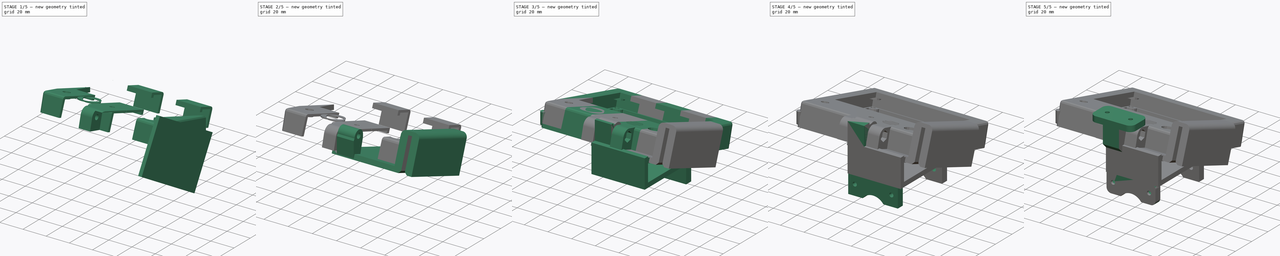
[diagram: build sequence overview — one tinted view per stage of 5, left to right]
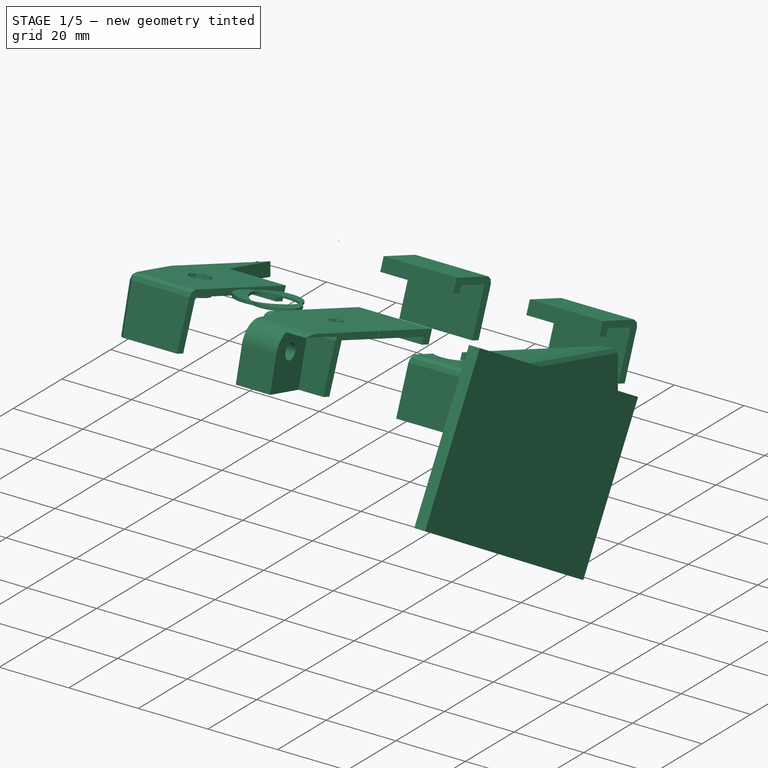
[diagram: stage 1 of 5 — iso view after this stage's code; geometry added in this stage tinted green]
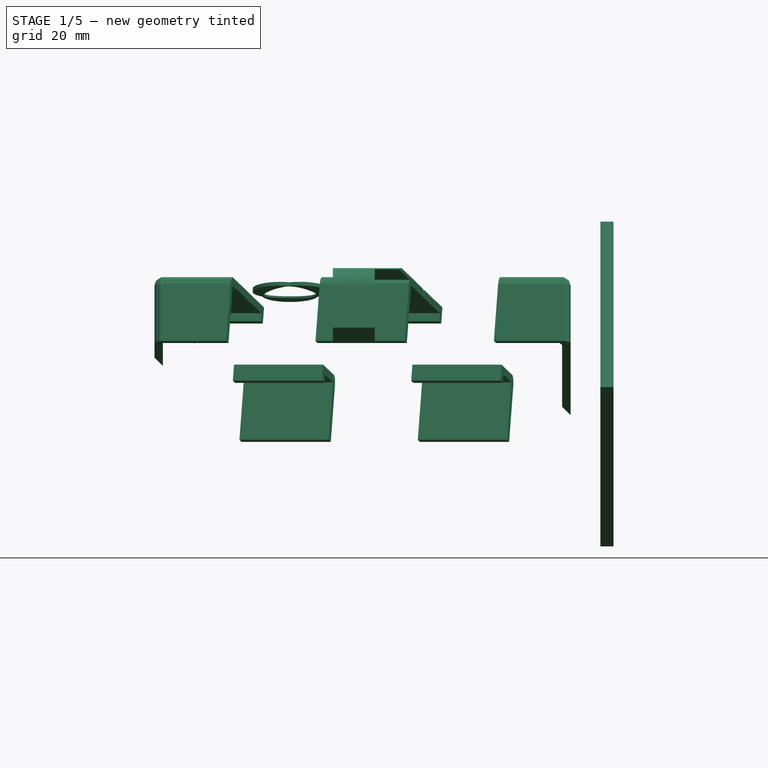
[diagram: stage 1 of 5 — front view after this stage's code; geometry added in this stage tinted green]
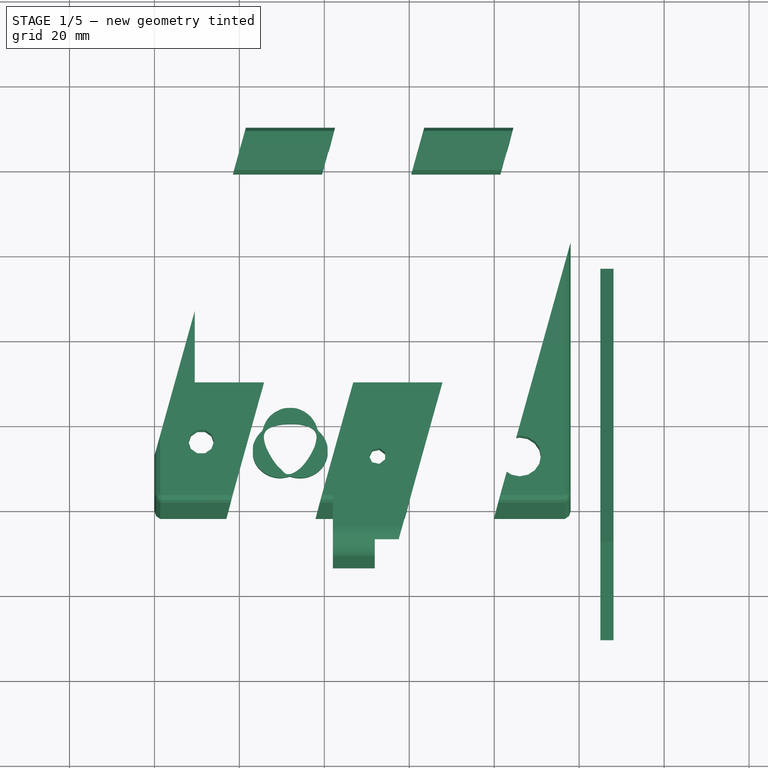
[diagram: stage 1 of 5 — top view after this stage's code; geometry added in this stage tinted green]
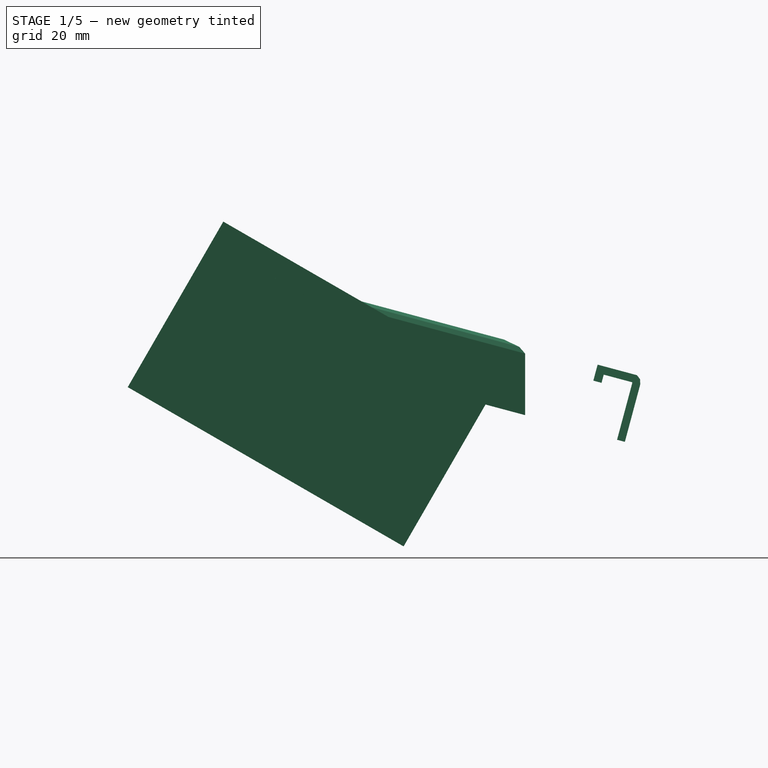
[diagram: stage 1 of 5 — right view after this stage's code; geometry added in this stage tinted green]
FCSTD DOCUMENT  (FreeCAD 0.16R5667 (Git))
Label: soporte-display
License: CC-BY 3.0
LicenseURL: http://creativecommons.org/licenses/by/3.0/
objects: Sketcher::SketchObject×23, PartDesign::Pocket×19, Part::FeaturePython×17, Part::Box×15, App::DocumentObjectGroup×13, Part::Feature×10, Part::MultiFuse×9, Part::Cut×7, PartDesign::Fillet×6, PartDesign::Chamfer×4, Part::MultiCommon×4, Part::Extrusion×3, Part::Cylinder×2, PartDesign::Pad×2, Part::Compound×1
note: 143 computed .brp shape members not serialized (recipe doc carries the construction recipe); baked Part::Feature solids carry a one-line shape summary decoded from their .brp

FEATURE [Part::Box] Box  label="Cube"
  Height = 15.9
  Length = 34
  Placement = pos=(42,-12,3) rot=(0,0,1;0rad)
  Width = 14
FEATURE [PartDesign::Fillet] Fillet
  Base = -> Box [Edge10]
  Placement = pos=(42,-12,3) rot=(0,0,1;0rad)
  Radius = 6
FEATURE [Sketcher::SketchObject] Sketch
  ExternalGeometry = -> [Fillet]
  Placement = pos=(42,-12,3) rot=(1,0,0;3.14159rad)
  Support = -> Fillet [Face4]
  sketch-geometry (6):
    g0: LineSegment StartX=9.875 StartY=0 StartZ=0 EndX=24.125 EndY=0 EndZ=0
    g1: LineSegment StartX=24.125 StartY=0 StartZ=0 EndX=24.125 EndY=-18.5079 EndZ=0
    g2: LineSegment StartX=24.125 StartY=-18.5079 StartZ=0 EndX=9.875 EndY=-18.5079 EndZ=0
    g3: LineSegment StartX=9.875 StartY=-18.5079 StartZ=0 EndX=9.875 EndY=0 EndZ=0
    g4: LineSegment [constr] StartX=0 StartY=0 StartZ=0 EndX=9.875 EndY=0 EndZ=0
    g5: LineSegment [constr] StartX=24.125 StartY=0 StartZ=0 EndX=34 EndY=0 EndZ=0
  constraints (15):
    c: Coincident(g0,g1)
    c: Coincident(g1,g2)
    c: Coincident(g2,g3)
    c: Coincident(g3,g0)
    c: Horizontal(g0)
    c: Horizontal(g2)
    c: Vertical(g1)
    c: Vertical(g3)
    c: PointOnObject(g0,g-5)
    c: Coincident(g4,g-1)
    c: Coincident(g4,g0)
    c: Coincident(g5,g0)
    c: Coincident(g5,g-5)
    c: Equal(g4,g5)
    c: Distance(g0,g0) = 14.25
FEATURE [PartDesign::Pocket] Pocket
  Length = 15
  Placement = pos=(42,-12,3) rot=(0,0,1;0rad)
  Sketch = -> Sketch
  Type = 0
FEATURE [Sketcher::SketchObject] Sketch001
  Placement = pos=(42,-12,3) rot=(0.57735,-0.57735,-0.57735;2.0944rad)
  Support = -> Pocket [Face1]
  sketch-geometry (1):
    g0: Circle CenterX=-6 CenterY=9.9 CenterZ=0 NormalX=0 NormalY=0 NormalZ=1 Radius=2.15
  constraints (1):
    c: Radius(g0) = 2.15
FEATURE [PartDesign::Pocket] Pocket001
  Length = 36
  Placement = pos=(42,-12,3) rot=(0,0,1;0rad)
  Sketch = -> Sketch001
  Type = 0
FEATURE [Sketcher::SketchObject] Sketch002
  Placement = pos=(42,-12,3) rot=(0.57735,-0.57735,-0.57735;2.0944rad)
  Support = -> Pocket001 [Face1]
  sketch-geometry (7):
    g0: LineSegment StartX=-2.3 StartY=12.0362 StartZ=0 EndX=-6 EndY=14.1724 EndZ=0
    g1: LineSegment StartX=-6 StartY=14.1724 StartZ=0 EndX=-9.7 EndY=12.0362 EndZ=0
    g2: LineSegment StartX=-9.7 StartY=12.0362 StartZ=0 EndX=-9.7 EndY=7.7638 EndZ=0
    g3: LineSegment StartX=-9.7 StartY=7.7638 StartZ=0 EndX=-6 EndY=5.62761 EndZ=0
    g4: LineSegment StartX=-6 StartY=5.62761 StartZ=0 EndX=-2.3 EndY=7.7638 EndZ=0
    g5: LineSegment StartX=-2.3 StartY=7.7638 StartZ=0 EndX=-2.3 EndY=12.0362 EndZ=0
    g6: Circle [constr] CenterX=-6 CenterY=9.9 CenterZ=0 NormalX=0 NormalY=0 NormalZ=1 Radius=4.27239
  constraints (15):
    c: Coincident(g0,g1)
    c: Coincident(g1,g2)
    c: Coincident(g2,g3)
    c: Coincident(g3,g4)
    c: Coincident(g4,g5)
    c: Coincident(g5,g0)
    c: Equal(g0, g1-g5) x5
    c: PointOnObject(g0,g6)
    c: PointOnObject(g1,g6)
    c: PointOnObject(g2,g6)
    c: PointOnObject(g3,g6)
    c: PointOnObject(g4,g6)
    c: PointOnObject(g5,g6)
    c: Distance(g4,g2) = 7.4
    c: Vertical(g5)
FEATURE [PartDesign::Pocket] Pocket002
  Length = 5.5
  Placement = pos=(42,-12,3) rot=(0,0,1;0rad)
  Sketch = -> Sketch002
  Type = 0
FEATURE [Sketcher::SketchObject] Sketch003
  Placement = pos=(76,-12,3) rot=(0.57735,0.57735,0.57735;2.0944rad)
  Support = -> Pocket002 [Face17]
  sketch-geometry (7):
    g0: LineSegment StartX=2.3 StartY=12.0362 StartZ=0 EndX=2.3 EndY=7.7638 EndZ=0
    g1: LineSegment StartX=2.3 StartY=7.7638 StartZ=0 EndX=6 EndY=5.62761 EndZ=0
    g2: LineSegment StartX=6 StartY=5.62761 StartZ=0 EndX=9.7 EndY=7.7638 EndZ=0
    g3: LineSegment StartX=9.7 StartY=7.7638 StartZ=0 EndX=9.7 EndY=12.0362 EndZ=0
    g4: LineSegment StartX=9.7 StartY=12.0362 StartZ=0 EndX=6 EndY=14.1724 EndZ=0
    g5: LineSegment StartX=6 StartY=14.1724 StartZ=0 EndX=2.3 EndY=12.0362 EndZ=0
    g6: Circle [constr] CenterX=6 CenterY=9.9 CenterZ=0 NormalX=0 NormalY=0 NormalZ=1 Radius=4.27239
  constraints (15):
    c: Coincident(g0,g1)
    c: Coincident(g1,g2)
    c: Coincident(g2,g3)
    c: Coincident(g3,g4)
    c: Coincident(g4,g5)
    c: Coincident(g5,g0)
    c: Equal(g0, g1-g5) x5
    c: PointOnObject(g0,g6)
    c: PointOnObject(g1,g6)
    c: PointOnObject(g2,g6)
    c: PointOnObject(g3,g6)
    c: PointOnObject(g4,g6)
    c: PointOnObject(g5,g6)
    c: Vertical(g0)
    c: Distance(g0,g3) = 7.4
FEATURE [PartDesign::Pocket] Pocket003  label="Frontal001"
  Length = 4
  Placement = pos=(42,-12,3) rot=(0,0,1;0rad)
  Sketch = -> Sketch003
  Type = 0
FEATURE [Part::MultiFuse] Fusion003
  Placement = pos=(0,-3.5,-1) rot=(-1,0,0;0.261799rad)
  Shapes = -> [Pocket003,Solid]
FEATURE [Part::Box] Box005008  label="Cubo"
  Height = 45
  Length = 3.1
  Placement = pos=(105,-31,-9) rot=(-1,0,0;0.523599rad)
  Width = 75
FEATURE [Part::Feature] Clone006001  label="Clone of Clone of Cut002"
  Placement = pos=(-80.5,140.5,-16) rot=(-1,0,0;0.226893rad)
  shape: bbox 17.66 x 17.4 x 6.784 mm, 37 faces (baked)
FEATURE [Part::Cut] Cut004  label="Frontal-branded"
  Base = -> Fusion003
  Tool = -> Clone006001
FEATURE [App::DocumentObjectGroup] Group  label="Frontal"
  Group = -> [Solid,Box,Fillet,Pocket,Pocket001,Pocket002,Pocket003,Cut004]
FEATURE [Sketcher::SketchObject] Sketch023
  Placement = pos=(0,4.40777,16.45) rot=(-1,0,0;0.261799rad)
  Support = -> Cut004 [Face51]
  sketch-geometry (22):
    g0: LineSegment [constr] StartX=-34.0548 StartY=125.691 StartZ=0 EndX=170.501 EndY=125.691 EndZ=0
    g1: LineSegment [constr] StartX=170.501 StartY=125.691 StartZ=0 EndX=170.501 EndY=-49.1688 EndZ=0
    g2: LineSegment [constr] StartX=-34.0548 StartY=-49.1688 StartZ=0 EndX=-34.0548 EndY=125.691 EndZ=0
    g3: LineSegment StartX=10.5477 StartY=125.691 StartZ=0 EndX=-40.8899 EndY=-66.277 EndZ=0
    g4: LineSegment StartX=-40.8899 StartY=-66.277 StartZ=0 EndX=-19.8899 EndY=-66.277 EndZ=0
    g5: LineSegment StartX=-19.8899 StartY=-66.277 StartZ=0 EndX=31.5477 EndY=125.691 EndZ=0
    g6: LineSegment StartX=31.5477 StartY=125.691 StartZ=0 EndX=10.5477 EndY=125.691 EndZ=0
    g7: LineSegment StartX=52.5477 StartY=125.691 StartZ=0 EndX=1.11006 EndY=-66.277 EndZ=0
    g8: LineSegment StartX=1.11006 StartY=-66.277 StartZ=0 EndX=22.1101 EndY=-66.277 EndZ=0
    g9: LineSegment StartX=22.1101 StartY=-66.277 StartZ=0 EndX=73.5477 EndY=125.691 EndZ=0
    g10: LineSegment StartX=73.5477 StartY=125.691 StartZ=0 EndX=52.5477 EndY=125.691 EndZ=0
    g11: LineSegment StartX=94.5477 StartY=125.691 StartZ=0 EndX=43.1101 EndY=-66.277 EndZ=0
    g12: LineSegment StartX=43.1101 StartY=-66.277 StartZ=0 EndX=64.1101 EndY=-66.277 EndZ=0
    g13: LineSegment StartX=64.1101 StartY=-66.277 StartZ=0 EndX=115.548 EndY=125.691 EndZ=0
    g14: LineSegment StartX=115.548 StartY=125.691 StartZ=0 EndX=94.5477 EndY=125.691 EndZ=0
    g15: LineSegment StartX=136.548 StartY=125.691 StartZ=0 EndX=85.1101 EndY=-66.277 EndZ=0
    g16: LineSegment StartX=85.1101 StartY=-66.277 StartZ=0 EndX=106.11 EndY=-66.277 EndZ=0
    g17: LineSegment StartX=106.11 StartY=-66.277 StartZ=0 EndX=157.548 EndY=125.691 EndZ=0
    g18: LineSegment StartX=157.548 StartY=125.691 StartZ=0 EndX=136.548 EndY=125.691 EndZ=0
    g19: LineSegment [constr] StartX=-19.8899 StartY=-66.277 StartZ=0 EndX=1.11006 EndY=-66.277 EndZ=0
    g20: LineSegment [constr] StartX=22.1101 StartY=-66.277 StartZ=0 EndX=43.1101 EndY=-66.277 EndZ=0
    g21: LineSegment [constr] StartX=64.1101 StartY=-66.277 StartZ=0 EndX=85.1101 EndY=-66.277 EndZ=0
  constraints (57):
    c: Coincident(g0,g1)
    c: Coincident(g2,g0)
    c: Horizontal(g0)
    c: Vertical(g1)
    c: Vertical(g2)
    c: PointOnObject(g3,g0)
    c: Coincident(g3,g4)
    c: Horizontal(g4)
    c: Coincident(g4,g5)
    c: PointOnObject(g5,g0)
    c: Coincident(g5,g6)
    c: Coincident(g6,g3)
    c: PointOnObject(g7,g0)
    c: Coincident(g7,g8)
    c: Horizontal(g8)
    c: Coincident(g8,g9)
    c: PointOnObject(g9,g0)
    c: Coincident(g9,g10)
    c: Coincident(g10,g7)
    c: PointOnObject(g11,g0)
    c: Coincident(g11,g12)
    c: Horizontal(g12)
    c: Coincident(g12,g13)
    c: PointOnObject(g13,g0)
    c: Coincident(g13,g14)
    c: Coincident(g14,g11)
    c: PointOnObject(g15,g0)
    c: Coincident(g15,g16)
    c: Horizontal(g16)
    c: Coincident(g16,g17)
    c: PointOnObject(g17,g0)
    c: Coincident(g17,g18)
    c: Coincident(g18,g15)
    c: Coincident(g19,g4)
    c: Coincident(g19,g7)
    c: Horizontal(g19)
    c: Coincident(g20,g8)
    c: Coincident(g20,g11)
    c: Coincident(g21,g12)
    c: Coincident(g21,g15)
    c: Horizontal(g21)
    c: Horizontal(g20)
    c: Parallel(g3,g5)
    c: Parallel(g5,g7)
    c: Parallel(g7,g9)
    c: Parallel(g9,g11)
    c: Parallel(g11,g13)
    c: Parallel(g13,g15)
    c: Parallel(g15,g17)
    c: Equal(g4,g19)
    c: Equal(g19,g8)
    c: Equal(g8,g20)
    c: Equal(g20,g12)
    c: Equal(g12,g21)
    c: Equal(g21,g16)
    c: Distance(g4) = 21
    c: Angle(g0,g17) = 1.309
FEATURE [Part::Extrusion] Extrude_Sketch023002  label="Sketch023_Extrude002"
  Base = -> Sketch023
  Dir = (0,0,75)
  Placement = pos=(0,0,-46) rot=(0,0,1;0rad)
  Solid = true
FEATURE [Part::FeaturePython] Clone006002  label="Clone of Sketch023_Extrude002"  # Draft clone (typed FeaturePython)
  Objects = -> [Extrude_Sketch023002]
  Placement = pos=(0,0,-46) rot=(0,0,1;0rad)
  Scale = (1,1,1)
FEATURE [Part::FeaturePython] Clone006008  label="Clone of Frontal-branded"  # Draft clone (typed FeaturePython)
  Objects = -> [Cut004]
  Scale = (1,1,1)
FEATURE [Part::Cut] Cut005
  Base = -> Clone006008
  Tool = -> Clone006002
FEATURE [App::DocumentObjectGroup] Grupo004  label="Soporte001"
  Group = -> [Cut007,Common002]
FEATURE [Part::FeaturePython] Clone006014  label="Clone of Fusion003"  # Draft clone (typed FeaturePython)
  Objects = -> [Fusion003]
  Placement = pos=(0,-3.5,-1) rot=(-1,0,0;0.261799rad)
  Scale = (1,1,1)
FEATURE [Part::FeaturePython] Clone006015  label="Clone of Clone of Clone of Cut002"  # Draft clone (typed FeaturePython)
  Objects = -> [Clone006001]
  Placement = pos=(-80.5,140.5,-16) rot=(-1,0,0;0.226893rad)
  Scale = (1,1,1)
FEATURE [Part::MultiCommon] Common003
  Shapes = -> [Clone006014,Clone006015]
FEATURE [Part::MultiFuse] Fusion010
  Shapes = -> [Common003,Cut005]
FEATURE [App::DocumentObjectGroup] Grupo002  label="Frontal002"
  Group = -> [Common,Fusion010]
FEATURE [App::DocumentObjectGroup] Grupo  label="DualColor"
  Group = -> [Grupo001,Grupo002,Grupo003,Grupo004]
FEATURE [App::DocumentObjectGroup] Group006  label="LCDFull"
  Group = -> [Group,Group001,Grupo]
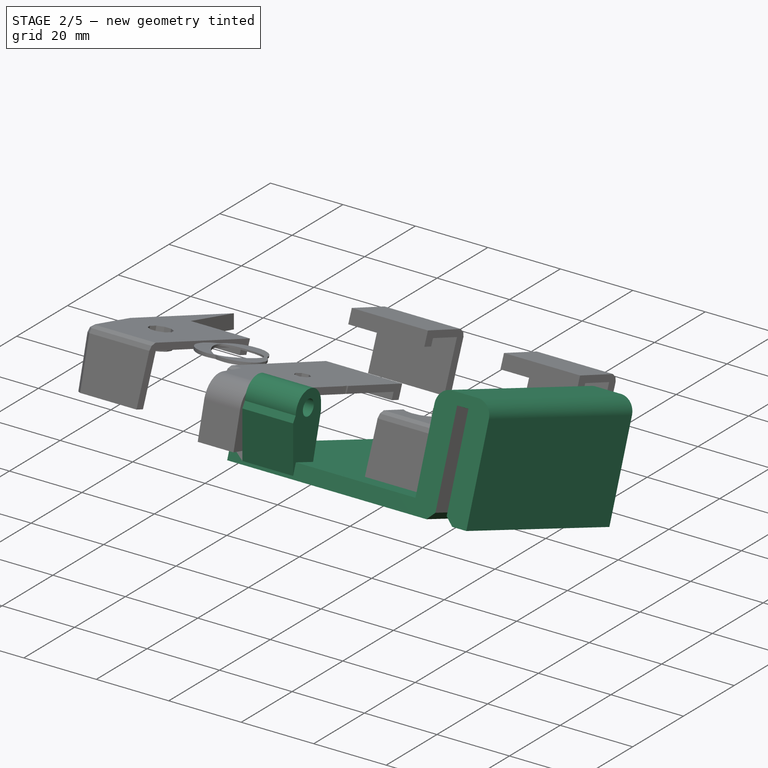
[diagram: stage 2 of 5 — iso view after this stage's code; geometry added in this stage tinted green]
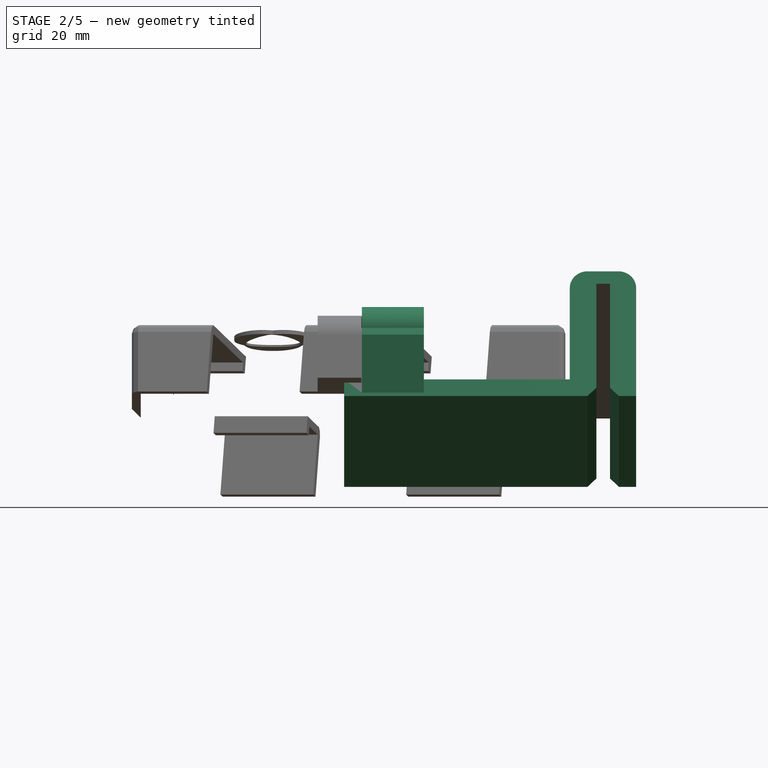
[diagram: stage 2 of 5 — front view after this stage's code; geometry added in this stage tinted green]
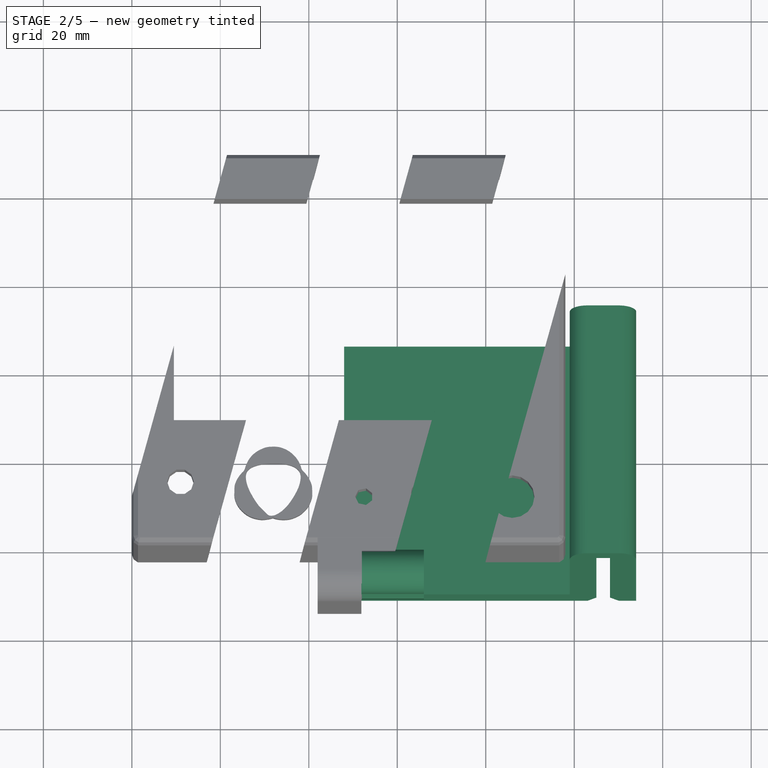
[diagram: stage 2 of 5 — top view after this stage's code; geometry added in this stage tinted green]
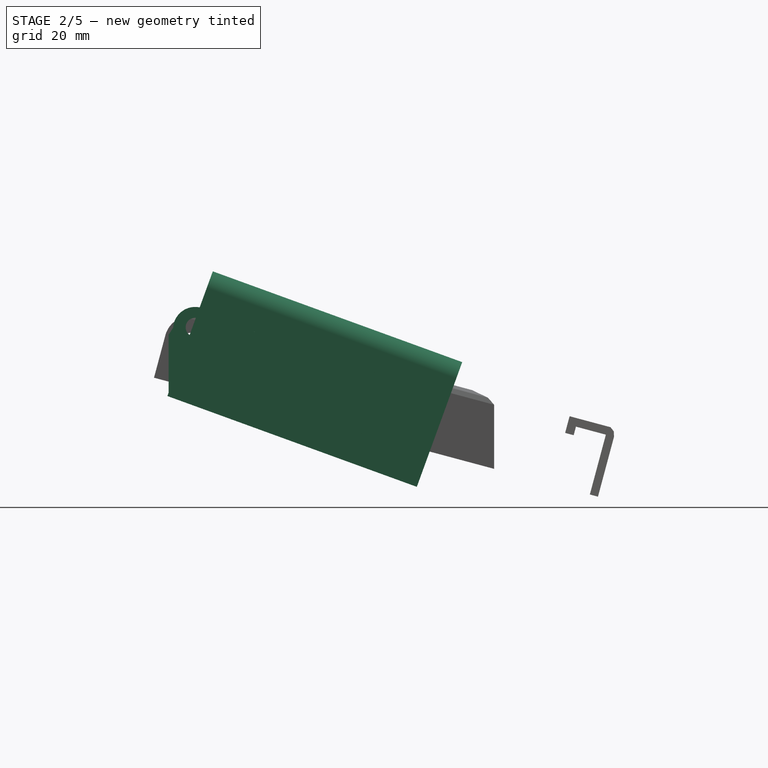
[diagram: stage 2 of 5 — right view after this stage's code; geometry added in this stage tinted green]
FEATURE [Part::Feature] Fusion006
  Placement = pos=(0,-3.5,-1) rot=(-1,0,0;0.261799rad)
  shape: bbox 98 x 104 x 40.9 mm, 224 faces (baked)
FEATURE [Part::Feature] Cut002  label="Trasera002"
  Placement = pos=(0,-3.5,-1) rot=(-1,0,0;0.261799rad)
  shape: bbox 97.8 x 89.59 x 28.95 mm, 98 faces (baked)
FEATURE [Part::Compound] Compound
  Links = -> [Fusion006,Cut002]
  Placement = pos=(0,0,3) rot=(-1,0,0;0.087267rad)
FEATURE [Sketcher::SketchObject] Sketch018
  ExternalGeometry = -> [Compound]
  Placement = pos=(98,0,3) rot=(0.559809,0.610924,0.559809;2.04477rad)
  Support = -> Compound [Face114]
  sketch-geometry (4):
    g0: LineSegment StartX=-10.0188 StartY=0.746702 StartZ=0 EndX=47.9368 EndY=-14.7824 EndZ=0
    g1: LineSegment StartX=47.9368 StartY=-14.7824 StartZ=0 EndX=46.9015 EndY=-18.6461 EndZ=0
    g2: LineSegment StartX=46.9015 StartY=-18.6461 StartZ=0 EndX=-11.0541 EndY=-3.117 EndZ=0
    g3: LineSegment StartX=-11.0541 StartY=-3.117 StartZ=0 EndX=-10.0188 EndY=0.746702 EndZ=0
  constraints (11):
    c: PointOnObject(g0,g-3)
    c: Coincident(g0,g1)
    c: Coincident(g1,g2)
    c: Coincident(g2,g3)
    c: Perpendicular(g3,g-3)
    c: Perpendicular(g2,g1)
    c: Perpendicular(g2,g3)
    c: Distance(g1) = 4
    c: Distance(g2) = 60
    c: Coincident(g3,g0)
    c: PointOnObject(g-3,g0)
FEATURE [App::DocumentObjectGroup] Group007  label="SoporteSteelV2"
  Group = -> [Pocket012,Compound,Fusion007,Pocket013,Pad,Pocket014,Pocket015,Sketch018]
FEATURE [Part::Extrusion] Extrude001
  Base = -> Sketch018
  Dir = (-50,0,0)
  Solid = true
FEATURE [Part::Feature] Pocket006001  label="Enganche002"
  Placement = pos=(0,1,3.5) rot=(0,0,1;0rad)
  shape: bbox 14 x 25.18 x 28.47 mm, 13 faces (baked)
FEATURE [Part::MultiFuse] Fusion008
  Shapes = -> [Pocket006001,Extrude001]
FEATURE [Sketcher::SketchObject] Sketch019
  ExternalGeometry = -> [Fusion008]
  Placement = pos=(98,0,0) rot=(0.57735,0.57735,0.57735;2.0944rad)
  Support = -> Fusion008 [Face15]
  sketch-geometry (4):
    g0: LineSegment StartX=-11.2837 StartY=0.858285 StartZ=0 EndX=-14.8012 EndY=-5.7242 EndZ=0
    g1: LineSegment StartX=-14.8012 StartY=-5.7242 StartZ=0 EndX=43.9091 EndY=-29.1265 EndZ=0
    g2: LineSegment StartX=43.9091 StartY=-29.1265 StartZ=0 EndX=45.0979 EndY=-19.6629 EndZ=0
    g3: LineSegment StartX=45.0979 StartY=-19.6629 StartZ=0 EndX=-11.2837 EndY=0.858285 EndZ=0
  constraints (6):
    c: Coincident(g-3,g0)
    c: Coincident(g0,g1)
    c: Coincident(g1,g2)
    c: Coincident(g2,g-3)
    c: Coincident(g2,g3)
    c: Coincident(g3,g0)
FEATURE [PartDesign::Pocket] Pocket006002
  Length = 5
  Sketch = -> Sketch019
  Type = 1
FEATURE [Part::FeaturePython] Facebinder  # WARN: FeaturePython — macro-defined, semantics opaque (R4)
  Faces = -> [Pocket006002]
FEATURE [Part::Extrusion] Extrude
  Base = -> Facebinder
  Dir = (1,0,0)
  Solid = true
FEATURE [Part::MultiFuse] Fusion009
  Shapes = -> [Extrude,Pocket006002]
FEATURE [Sketcher::SketchObject] Sketch020
  ExternalGeometry = -> [Fusion009]
  Placement = pos=(99,0,0) rot=(0.57735,0.57735,0.57735;2.0944rad)
  Support = -> Fusion009 [Face1]
  sketch-geometry (4):
    g0: LineSegment StartX=-11.2837 StartY=0.858285 StartZ=0 EndX=-1.02305 EndY=29.0491 EndZ=0
    g1: LineSegment StartX=-1.02305 StartY=29.0491 StartZ=0 EndX=55.3585 EndY=8.52785 EndZ=0
    g2: LineSegment StartX=55.3585 StartY=8.52785 StartZ=0 EndX=45.0979 EndY=-19.6629 EndZ=0
    g3: LineSegment StartX=45.0979 StartY=-19.6629 StartZ=0 EndX=-11.2837 EndY=0.858285 EndZ=0
  constraints (10):
    c: Coincident(g-3,g0)
    c: Coincident(g0,g1)
    c: Coincident(g1,g2)
    c: Coincident(g2,g-3)
    c: Coincident(g2,g3)
    c: Coincident(g3,g0)
    c: Perpendicular(g2,g-3)
    c: Perpendicular(g-3,g0)
    c: Parallel(g1,g-3)
    c: Distance(g0) = 30
FEATURE [PartDesign::Pad] Pad001
  Length = 15
  Length2 = 100
  Sketch = -> Sketch020
  Type = 0
FEATURE [Part::Cut] Cut003
  Base = -> Pad001
  Tool = -> Box005008
FEATURE [PartDesign::Fillet] Fillet005
  Base = -> Cut003 [Edge14,Edge2]
  Radius = 4
FEATURE [PartDesign::Chamfer] Chamfer003
  Base = -> Fillet005 [Edge34,Edge17]
  Size = 2
FEATURE [Sketcher::SketchObject] Sketch021
  ExternalGeometry = -> [Chamfer003]
  Placement = pos=(52,0,0) rot=(0.57735,-0.57735,-0.57735;2.0944rad)
  Support = -> Chamfer003 [Face25]
  sketch-geometry (5):
    g0: ArcOfCircle CenterX=5 CenterY=16 CenterZ=0 NormalX=0 NormalY=0 NormalZ=1 Radius=5 StartAngle=0.0609518 EndAngle=1.5708
    g1: LineSegment StartX=5 StartY=21 StartZ=0 EndX=2.87094 EndY=26.4215 EndZ=0
    g2: LineSegment StartX=2.87094 StartY=26.4215 StartZ=0 EndX=20.2344 EndY=26.4215 EndZ=0
    g3: LineSegment StartX=20.2344 StartY=26.4215 StartZ=0 EndX=11 EndY=14.7332 EndZ=0
    g4: LineSegment StartX=11 StartY=14.7332 StartZ=0 EndX=9.99072 EndY=16.3046 EndZ=0
  constraints (10):
    c: Coincident(g0,g-3)
    c: PointOnObject(g0,g-4)
    c: Equal(g0,g-3)
    c: Coincident(g1,g2)
    c: Horizontal(g2)
    c: Coincident(g2,g3)
    c: Coincident(g3,g4)
    c: Coincident(g4,g0)
    c: PointOnObject(g3,g-6)
    c: Coincident(g1,g0)
FEATURE [PartDesign::Pocket] Pocket006003
  Length = 15
  Sketch = -> Sketch021
  Type = 0
FEATURE [Sketcher::SketchObject] Sketch022
  ExternalGeometry = -> [Pocket006003]
  Placement = pos=(48,0,0) rot=(0.57735,-0.57735,-0.57735;2.0944rad)
  Support = -> Pocket006003 [Face22]
  sketch-geometry (4):
    g0: LineSegment StartX=-16.8235 StartY=-5.11518 StartZ=0 EndX=-20.7882 EndY=5.12652 EndZ=0
    g1: LineSegment StartX=-20.7882 StartY=5.12652 StartZ=0 EndX=0.552111 EndY=11.7974 EndZ=0
    g2: LineSegment StartX=0.552111 StartY=11.7974 StartZ=0 EndX=3.13715 EndY=2.14991 EndZ=0
    g3: LineSegment StartX=3.13715 StartY=2.14991 StartZ=0 EndX=-16.8235 EndY=-5.11518 EndZ=0
  constraints (8):
    c: PointOnObject(g0,g-4)
    c: Coincident(g0,g1)
    c: PointOnObject(g1,g-3)
    c: Coincident(g1,g2)
    c: PointOnObject(g2,g-4)
    c: Coincident(g2,g3)
    c: Coincident(g3,g0)
    c: PointOnObject(g-3,g2)
FEATURE [PartDesign::Pocket] Pocket006004  label="sOPORTEhORIZ"
  Length = 30
  Sketch = -> Sketch022
  Type = 0
FEATURE [Part::FeaturePython] Clone006006  label="Clone of Sketch023_Extrude006"  # Draft clone (typed FeaturePython)
  Objects = -> [Extrude_Sketch023002]
  Placement = pos=(0,0,-46) rot=(0,0,1;0rad)
  Scale = (1,1,1)
FEATURE [Part::FeaturePython] Clone006007  label="Clone of Sketch023_Extrude007"  # Draft clone (typed FeaturePython)
  Objects = -> [Extrude_Sketch023002]
  Placement = pos=(0,0,-46) rot=(0,0,1;0rad)
  Scale = (1,1,1)
FEATURE [Part::FeaturePython] Clone006012  label="Clone of Pocket006004"  # Draft clone (typed FeaturePython)
  Objects = -> [Pocket006004]
  Scale = (1,1,1)
FEATURE [Part::FeaturePython] Clone006013  label="Clone of Pocket006005"  # Draft clone (typed FeaturePython)
  Objects = -> [Pocket006004]
  Scale = (1,1,1)
FEATURE [App::DocumentObjectGroup] Grupo003  label="Trasera003"
  Group = -> [Cut006,Common001]
FEATURE [Part::Cut] Cut007
  Base = -> Clone006012
  Tool = -> Clone006006
FEATURE [Part::MultiCommon] Common002
  Shapes = -> [Clone006013,Clone006007]
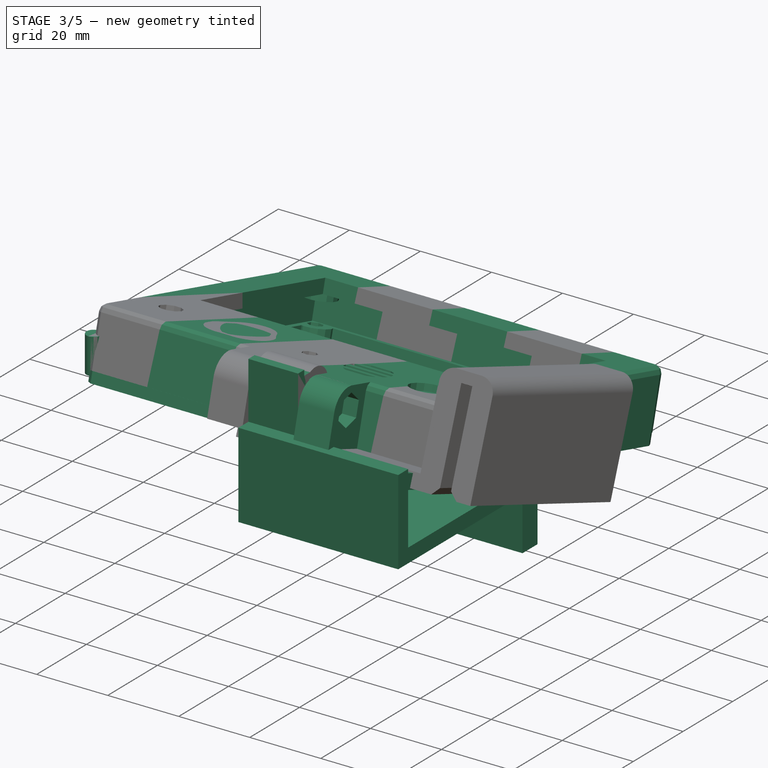
[diagram: stage 3 of 5 — iso view after this stage's code; geometry added in this stage tinted green]
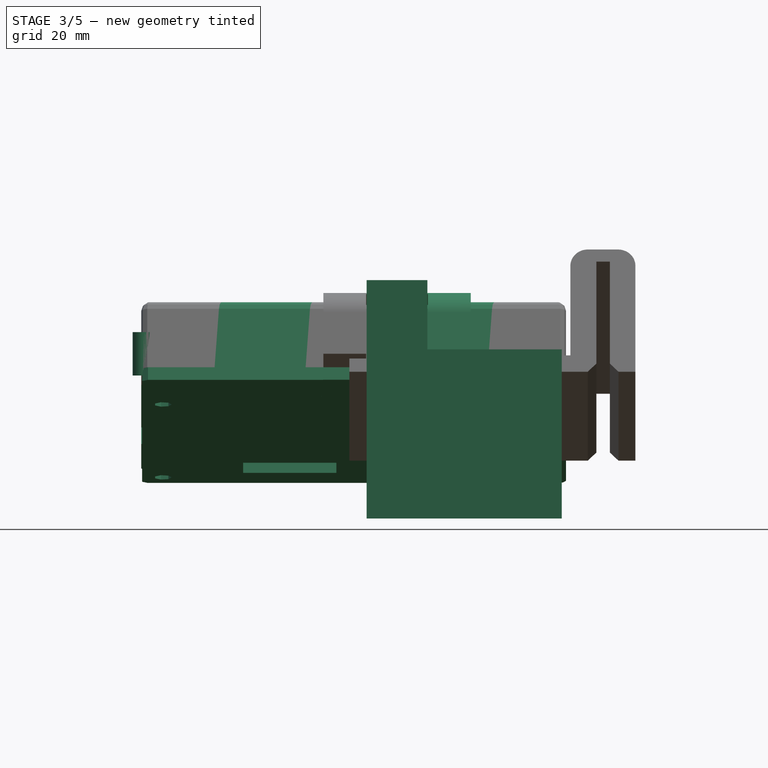
[diagram: stage 3 of 5 — front view after this stage's code; geometry added in this stage tinted green]
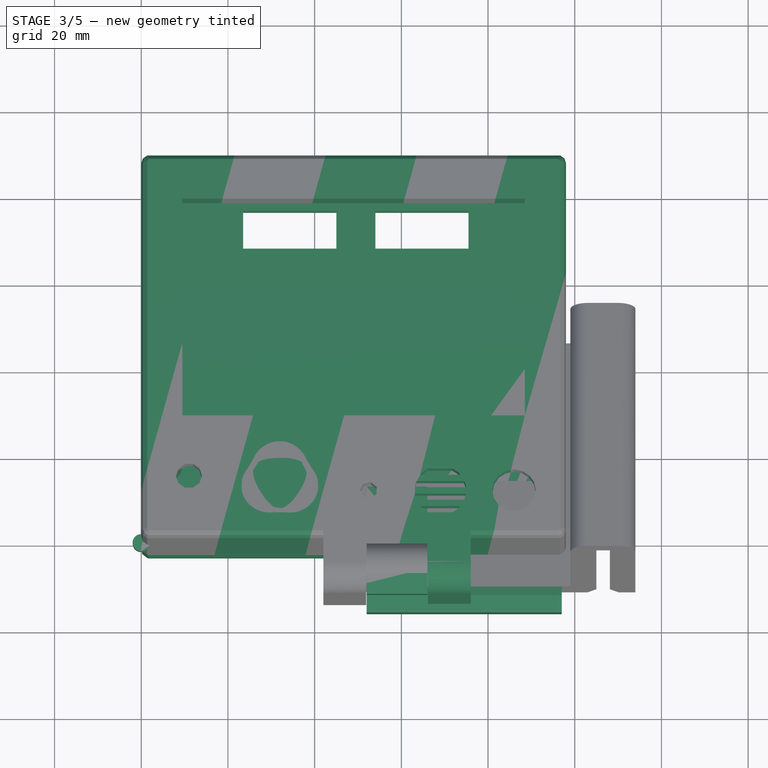
[diagram: stage 3 of 5 — top view after this stage's code; geometry added in this stage tinted green]
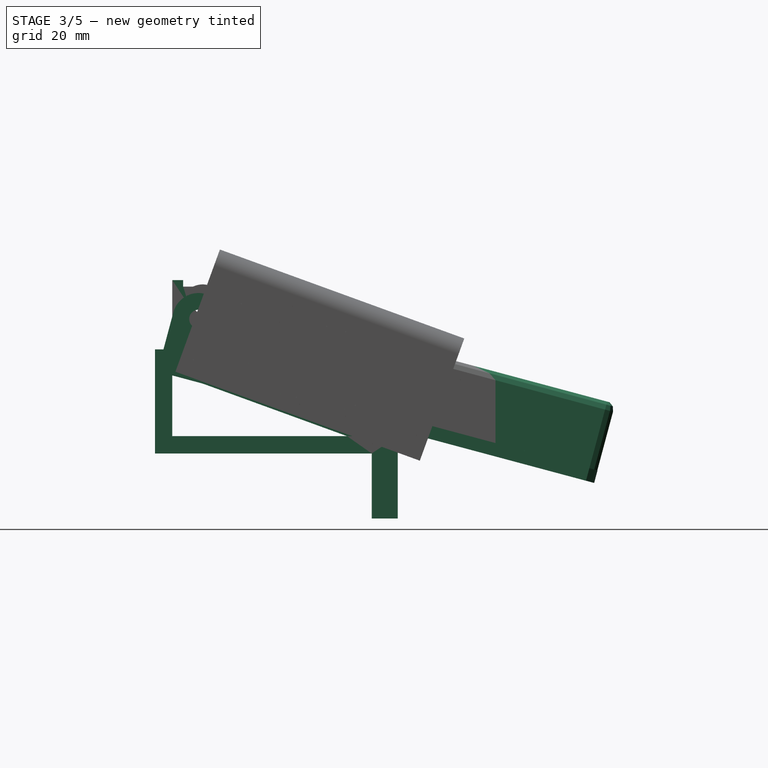
[diagram: stage 3 of 5 — right view after this stage's code; geometry added in this stage tinted green]
FEATURE [Part::Feature] Solid003  label="moeb-logo"
  shape: bbox 35.03 x 33.61 x 5 mm, 530 faces (baked)
FEATURE [Part::Box] Box001
  Height = 16
  Length = 38
  Placement = pos=(40,-16.5,0) rot=(0,0,1;0rad)
  Width = 16.5
FEATURE [Part::Cut] Cut  label="Trasera"
  Base = -> Solid001
  Placement = pos=(0,-3.5,-1) rot=(-1,0,0;0.261799rad)
  Tool = -> Box001
FEATURE [Part::Box] Box005004
  Height = 20
  Length = 45
  Placement = pos=(52,-16,-14) rot=(0,0,1;0rad)
  Width = 4
FEATURE [Part::Box] Box005005
  Height = 4
  Length = 45
  Placement = pos=(52,-16,-18) rot=(0,0,1;0rad)
  Width = 56
FEATURE [Part::Box] Box005006
  Height = 4
  Length = 45
  Placement = pos=(52,-14,1.4) rot=(-1,0,0;0.349065rad)
  Width = 56
FEATURE [Part::Box] Box005007
  Height = 15
  Length = 45
  Placement = pos=(52,34,-33) rot=(0,0,1;0rad)
  Width = 6
FEATURE [Part::MultiFuse] Fusion007
  Shapes = -> [Clone001001,Box005004,Box005005,Box005006,Box005007]
FEATURE [App::DocumentObjectGroup] Grupo001  label="Patron"
  Group = -> [Extrude_Sketch023002]
FEATURE [Part::Cylinder] Cylinder001  label="Cilindro"
  Angle = 360
  Height = 10
  Radius = 2
FEATURE [Part::FeaturePython] Clone006003  label="Clone of Sketch023_Extrude003"  # Draft clone (typed FeaturePython)
  Objects = -> [Extrude_Sketch023002]
  Placement = pos=(0,0,-46) rot=(0,0,1;0rad)
  Scale = (1,1,1)
FEATURE [Part::FeaturePython] Clone006004  label="Clone of Sketch023_Extrude004"  # Draft clone (typed FeaturePython)
  Objects = -> [Extrude_Sketch023002]
  Placement = pos=(0,0,-46) rot=(0,0,1;0rad)
  Scale = (1,1,1)
FEATURE [Part::FeaturePython] Clone006005  label="Clone of Sketch023_Extrude005"  # Draft clone (typed FeaturePython)
  Objects = -> [Extrude_Sketch023002]
  Placement = pos=(0,0,-46) rot=(0,0,1;0rad)
  Scale = (1,1,1)
FEATURE [Part::FeaturePython] Clone006009  label="Clone of Frontal-branded001"  # Draft clone (typed FeaturePython)
  Objects = -> [Cut004]
  Scale = (1,1,1)
FEATURE [Part::FeaturePython] Clone006010  label="Clone of Trasera"  # Draft clone (typed FeaturePython)
  Objects = -> [Cut]
  Placement = pos=(0,-3.5,-1) rot=(-1,0,0;0.261799rad)
  Scale = (1,1,1)
FEATURE [Part::FeaturePython] Clone006011  label="Clone of Trasera001"  # Draft clone (typed FeaturePython)
  Objects = -> [Cut]
  Placement = pos=(0,-3.5,-1) rot=(-1,0,0;0.261799rad)
  Scale = (1,1,1)
FEATURE [Part::MultiCommon] Common
  Shapes = -> [Clone006003,Clone006009]
FEATURE [Part::Cut] Cut006
  Base = -> Clone006010
  Tool = -> Clone006004
FEATURE [Part::MultiCommon] Common001
  Shapes = -> [Clone006011,Clone006005]
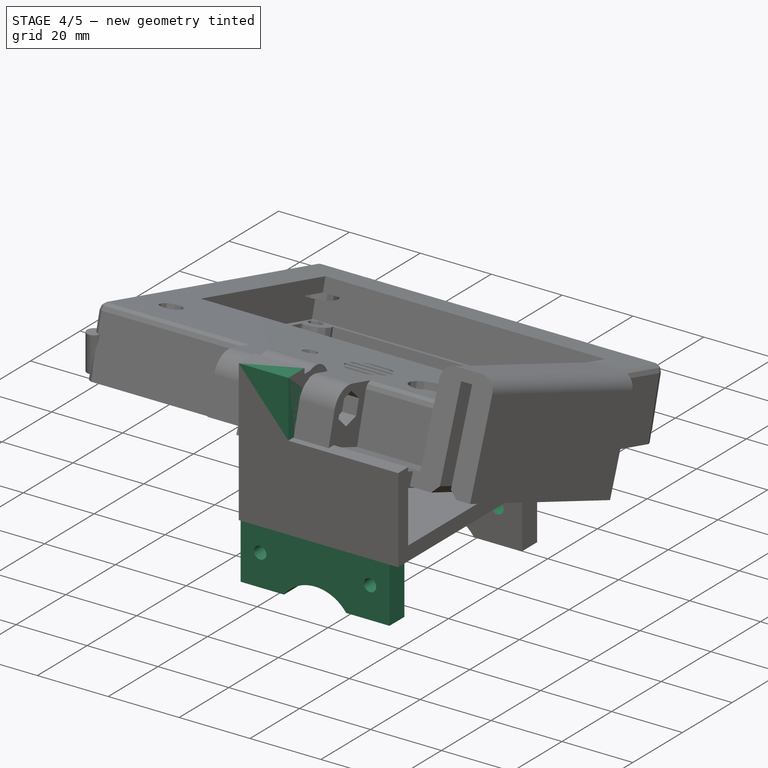
[diagram: stage 4 of 5 — iso view after this stage's code; geometry added in this stage tinted green]
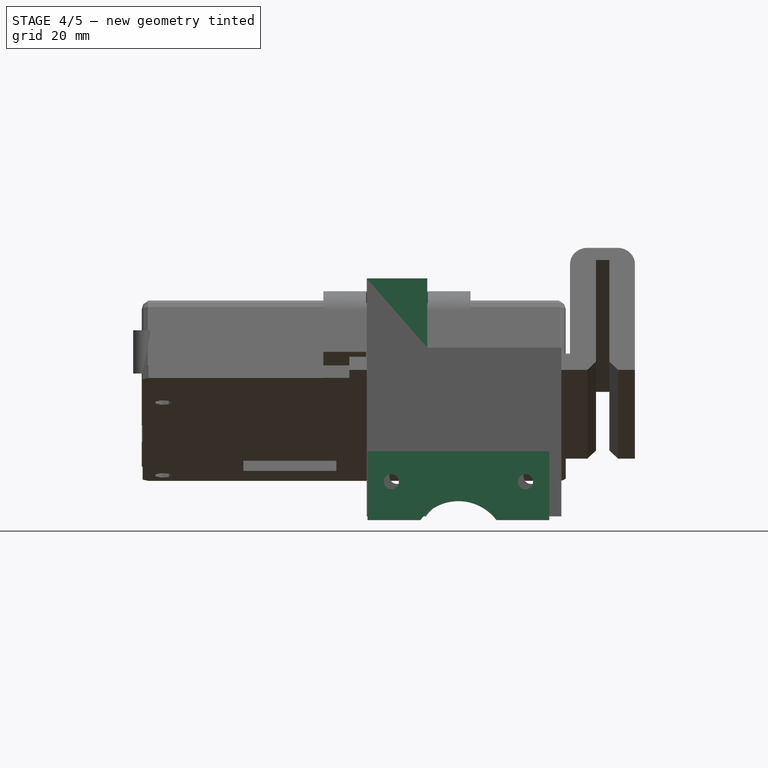
[diagram: stage 4 of 5 — front view after this stage's code; geometry added in this stage tinted green]
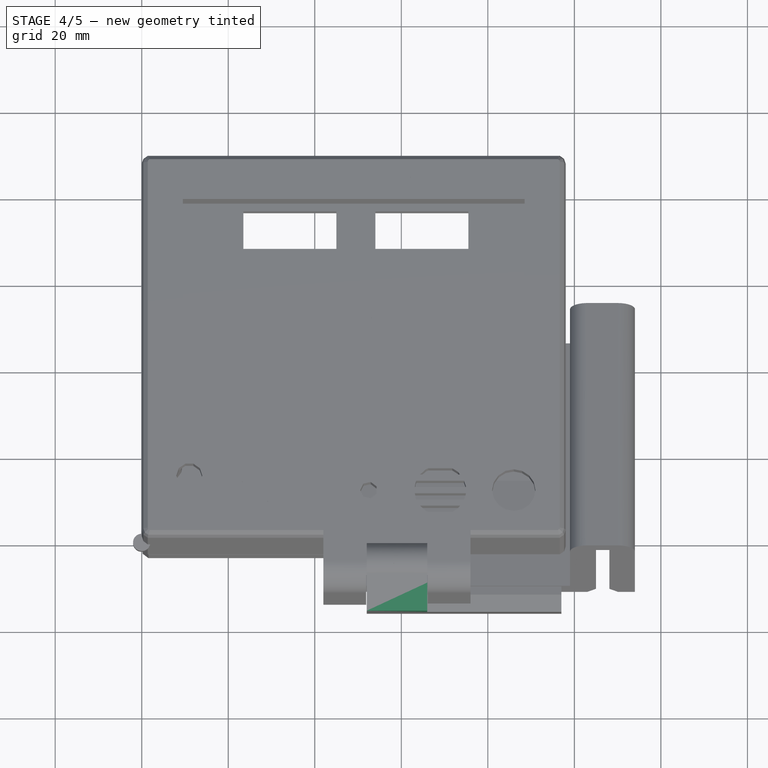
[diagram: stage 4 of 5 — top view after this stage's code; geometry added in this stage tinted green]
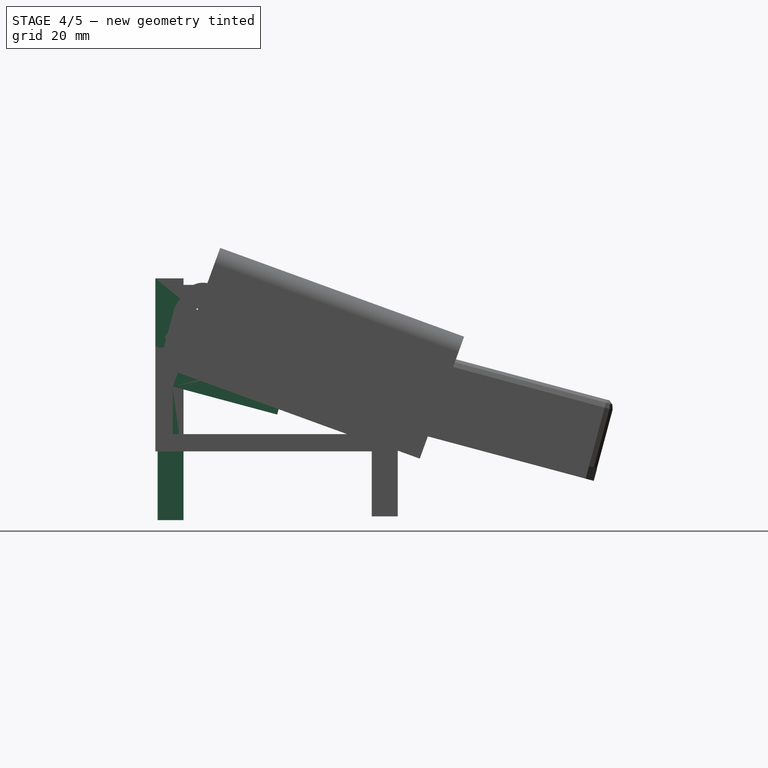
[diagram: stage 4 of 5 — right view after this stage's code; geometry added in this stage tinted green]
FEATURE [Part::Feature] Solid  label="Front"
  Placement = pos=(98,0,19) rot=(0,1,0;3.14159rad)
  shape: bbox 98 x 91.8 x 15.9 mm, 195 faces (baked)
FEATURE [Part::Feature] Solid001  label="Back"
  shape: bbox 97.8 x 103.9 x 11.92 mm, 146 faces (baked)
FEATURE [Part::Feature] Solid002  label="Soporte-Meta"
  Placement = pos=(118,-6,25) rot=(0,1,0;3.14159rad)
  shape: bbox 35.8 x 19.95 x 16.92 mm, 70 faces (baked)
FEATURE [Part::Cylinder] Cylinder
  Angle = 360
  Height = 50
  Placement = pos=(31,-6,12.9) rot=(0,1,0;1.5708rad)
  Radius = 2.15
FEATURE [Part::Box] Box002  label="Cube001"
  Height = 20.5
  Length = 14
  Placement = pos=(52,-12,-3) rot=(0,0,1;0rad)
  Width = 11
FEATURE [App::DocumentObjectGroup] Group001  label="Trasera001"
  Group = -> [Cut]
FEATURE [Part::Box] Box003  label="Cube002"
  Height = 4
  Length = 14
  Placement = pos=(52,-12,-3) rot=(-1,0,0;0.261799rad)
  Width = 25
FEATURE [PartDesign::Chamfer] Chamfer
  Base = -> Box002 [Edge11]
  Placement = pos=(52,-12,-3) rot=(0,0,1;0rad)
  Size = 4
FEATURE [Part::Box] Box004  label="Cube003"
  Height = 5
  Length = 14
  Placement = pos=(52,-12,14) rot=(0,0,1;0rad)
  Width = 2.5
FEATURE [PartDesign::Fillet] Fillet001
  Base = -> Chamfer [Edge8]
  Placement = pos=(52,-12,-3) rot=(0,0,1;0rad)
  Radius = 5
FEATURE [Part::MultiFuse] Fusion
  Shapes = -> [Box004,Fillet001,Box003]
FEATURE [Part::Cut] Cut001  label="agujero"
  Base = -> Fusion
  Tool = -> Cylinder
FEATURE [Sketcher::SketchObject] Sketch006
  ExternalGeometry = -> [Cut001]
  Placement = pos=(66,0,0) rot=(0.57735,0.57735,0.57735;2.0944rad)
  Support = -> Cut001 [Face3]
  sketch-geometry (3):
    g0: LineSegment StartX=13.1834 StartY=-5.60677 StartZ=0 EndX=-4.04106 EndY=-0.991486 EndZ=0
    g1: LineSegment StartX=-4.04106 StartY=-0.991486 StartZ=0 EndX=-0.407217 EndY=12.5702 EndZ=0
    g2: LineSegment StartX=-0.407217 StartY=12.5702 StartZ=0 EndX=13.1834 EndY=-5.60677 EndZ=0
  constraints (6):
    c: Coincident(g-3,g0)
    c: Coincident(g0,g1)
    c: Coincident(g1,g2)
    c: Coincident(g2,g0)
    c: Parallel(g-3,g0)
    c: Perpendicular(g1,g0)
FEATURE [PartDesign::Pocket] Pocket006  label="Enganche001"
  Length = 15
  Sketch = -> Sketch006
  Type = 0
FEATURE [App::DocumentObjectGroup] Group003  label="Soporte-Meta001"
  Group = -> [Box005,Pocket004,Pocket005,Box006,Fusion001,Clone,Fusion004,Chamfer001,Fillet002,Pocket008,Pocket007]
FEATURE [Part::Box] Box005002
  Height = 42
  Length = 13.8
  Placement = pos=(52.2,-15.5,-21) rot=(0,0,1;0rad)
  Width = 6
FEATURE [Part::Feature] Solid004  label="Soporte-Steel001"
  Placement = pos=(-7,-19,-29) rot=(0,0.707107,0.707107;3.14159rad)
  shape: bbox 45 x 17 x 45 mm, 249 faces (baked)
FEATURE [App::DocumentObjectGroup] Group004  label="originales"
  Group = -> [Solid002,Solid004]
FEATURE [Part::Box] Box005003
  Height = 25
  Length = 42
  Placement = pos=(52.2,-15.5,-42) rot=(0,0,1;0rad)
  Width = 6
FEATURE [Sketcher::SketchObject] Sketch009
  ExternalGeometry = -> [Box005003]
  Placement = pos=(52.2,-9.5,-42) rot=(0,0.707107,0.707107;3.14159rad)
  Support = -> Box005003 [Face4]
  sketch-geometry (11):
    g0: LineSegment [constr] StartX=-36.5 StartY=17 StartZ=0 EndX=-5.5 EndY=17 EndZ=0
    g1: LineSegment [constr] StartX=-5.5 StartY=17 StartZ=0 EndX=-5.5 EndY=-14 EndZ=0
    g2: LineSegment [constr] StartX=-5.5 StartY=-14 StartZ=0 EndX=-36.5 EndY=-14 EndZ=0
    g3: LineSegment [constr] StartX=-36.5 StartY=-14 StartZ=0 EndX=-36.5 EndY=17 EndZ=0
    g4: LineSegment [constr] StartX=-5.5 StartY=17 StartZ=0 EndX=-36.5 EndY=-14 EndZ=0
    g5: LineSegment [constr] StartX=-36.5 StartY=17 StartZ=0 EndX=-5.5 EndY=-14 EndZ=0
    g6: Circle CenterX=-21 CenterY=1.5 CenterZ=0 NormalX=0 NormalY=0 NormalZ=1 Radius=11
    g7: LineSegment [constr] StartX=-36.5 StartY=17 StartZ=0 EndX=-42 EndY=17 EndZ=0
    g8: LineSegment [constr] StartX=-5.5 StartY=17 StartZ=0 EndX=0 EndY=17 EndZ=0
    g9: Circle CenterX=-36.5 CenterY=17 CenterZ=0 NormalX=0 NormalY=0 NormalZ=1 Radius=1.75
    g10: Circle CenterX=-5.5 CenterY=17 CenterZ=0 NormalX=0 NormalY=0 NormalZ=1 Radius=1.75
  constraints (30):
    c: Coincident(g0,g1)
    c: Coincident(g1,g2)
    c: Coincident(g2,g3)
    c: Coincident(g3,g0)
    c: Horizontal(g0)
    c: Horizontal(g2)
    c: Vertical(g1)
    c: Vertical(g3)
    c: Equal(g0,g3)
    c: Distance(g0) = 31
    c: PointOnObject(g4,g0)
    c: Coincident(g4,g2)
    c: Coincident(g5,g0)
    c: Coincident(g5,g1)
    c: Coincident(g0,g4)
    c: PointOnObject(g6,g4)
    c: PointOnObject(g6,g5)
    c: Coincident(g7,g0)
    c: PointOnObject(g7,g-4)
    c: Horizontal(g7)
    c: Coincident(g8,g0)
    c: PointOnObject(g8,g-2)
    c: Horizontal(g8)
    c: Equal(g7,g8)
    c: Coincident(g9,g0)
    c: Coincident(g10,g0)
    c: Equal(g10,g9)
    c: Radius(g9) = 1.75
    c: Radius(g6) = 11
    c: Distance(g-4,g7) = 8
FEATURE [PartDesign::Pocket] Pocket009
  Length = 6
  Placement = pos=(52.2,-15.5,-42) rot=(0,0,1;0rad)
  Sketch = -> Sketch009
  Type = 0
FEATURE [Sketcher::SketchObject] Sketch010
  Placement = pos=(52.2,-9.5,-42) rot=(0,0.707107,0.707107;3.14159rad)
  Support = -> Pocket009 [Face4]
  sketch-geometry (4):
    g0: LineSegment StartX=-50.6539 StartY=8.12432 StartZ=0 EndX=11.729 EndY=8.12432 EndZ=0
    g1: LineSegment StartX=11.729 StartY=8.12432 StartZ=0 EndX=11.729 EndY=-17.0239 EndZ=0
    g2: LineSegment StartX=11.729 StartY=-17.0239 StartZ=0 EndX=-50.6539 EndY=-17.0239 EndZ=0
    g3: LineSegment StartX=-50.6539 StartY=-17.0239 StartZ=0 EndX=-50.6539 EndY=8.12432 EndZ=0
  constraints (8):
    c: Coincident(g0,g1)
    c: Coincident(g1,g2)
    c: Coincident(g2,g3)
    c: Coincident(g3,g0)
    c: Horizontal(g0)
    c: Horizontal(g2)
    c: Vertical(g1)
    c: Vertical(g3)
FEATURE [PartDesign::Pocket] Pocket010
  Length = 6
  Placement = pos=(52.2,-15.5,-42) rot=(0,0,1;0rad)
  Sketch = -> Sketch010
  Type = 0
FEATURE [App::DocumentObjectGroup] Group005  label="Soporte-Steel1"
  Group = -> [Clone001,Box005003,Pocket009,Fusion005,Chamfer002,Fillet003,Fillet004,Pocket011]
FEATURE [Part::Feature] Clone001001  label="Clone of Enganche003"
  Placement = pos=(0,0,3) rot=(0,0,1;0rad)
  shape: bbox 14 x 25.18 x 28.47 mm, 13 faces (baked)
FEATURE [Sketcher::SketchObject] Sketch012
  ExternalGeometry = -> [Clone001001]
  Placement = pos=(52,0,3) rot=(0.57735,-0.57735,-0.57735;2.0944rad)
  Support = -> Clone001001 [Face4]
  sketch-geometry (4):
    g0: LineSegment StartX=4.04106 StartY=-0.991486 StartZ=0 EndX=5.07634 EndY=-4.85519 EndZ=0
    g1: LineSegment StartX=5.07634 StartY=-4.85519 StartZ=0 EndX=-12.1481 EndY=-9.47048 EndZ=0
    g2: LineSegment StartX=-12.1481 StartY=-9.47048 StartZ=0 EndX=-13.1834 EndY=-5.60677 EndZ=0
    g3: LineSegment StartX=-13.1834 StartY=-5.60677 StartZ=0 EndX=4.04106 EndY=-0.991486 EndZ=0
  constraints (9):
    c: Coincident(g0,g-3)
    c: PointOnObject(g0,g-4)
    c: Perpendicular(g-4,g0)
    c: Coincident(g0,g1)
    c: Coincident(g1,g-4)
    c: Coincident(g1,g2)
    c: Coincident(g2,g-5)
    c: Coincident(g2,g3)
    c: Coincident(g3,g0)
FEATURE [PartDesign::Pocket] Pocket012
  Length = 14
  Placement = pos=(0,0,3) rot=(0,0,1;0rad)
  Sketch = -> Sketch012
  Type = 0
FEATURE [Sketcher::SketchObject] Sketch014
  ExternalGeometry = -> [Fusion007]
  Placement = pos=(52,0,0) rot=(0.57735,-0.57735,-0.57735;2.0944rad)
  Support = -> Fusion007 [Face4]
  sketch-geometry (3):
    g0: LineSegment StartX=-12.7854 StartY=-4.09235 StartZ=0 EndX=4.03534 EndY=2.02988 EndZ=0
    g1: LineSegment StartX=4.03534 StartY=2.02988 StartZ=0 EndX=-15.7454 EndY=6.95456 EndZ=0
    g2: LineSegment StartX=-15.7454 StartY=6.95456 StartZ=0 EndX=-12.7854 EndY=-4.09235 EndZ=0
  constraints (6):
    c: Coincident(g-3,g0)
    c: Coincident(g0,g-4)
    c: Coincident(g0,g1)
    c: Coincident(g1,g2)
    c: Coincident(g2,g0)
    c: Parallel(g2,g-5)
FEATURE [PartDesign::Pocket] Pocket013
  Length = 14
  Sketch = -> Sketch014
  Type = 0
FEATURE [Sketcher::SketchObject] Sketch015
  ExternalGeometry = -> [Pocket013]
  Placement = pos=(0,-12,0) rot=(1,0,0;1.5708rad)
  Support = -> Pocket013 [Face14]
  sketch-geometry (4):
    g0: LineSegment StartX=52 StartY=22 StartZ=0 EndX=66 EndY=22 EndZ=0
    g1: LineSegment StartX=66 StartY=22 StartZ=0 EndX=66 EndY=6 EndZ=0
    g2: LineSegment StartX=66 StartY=6 StartZ=0 EndX=52 EndY=6 EndZ=0
    g3: LineSegment StartX=52 StartY=6 StartZ=0 EndX=52 EndY=22 EndZ=0
  constraints (10):
    c: Coincident(g0,g1)
    c: Coincident(g1,g2)
    c: Coincident(g2,g3)
    c: Coincident(g3,g0)
    c: Horizontal(g0)
    c: Horizontal(g2)
    c: Vertical(g1)
    c: Vertical(g3)
    c: Coincident(g0,g-3)
    c: Coincident(g1,g-4)
FEATURE [PartDesign::Pad] Pad
  Length = 4
  Length2 = 100
  Sketch = -> Sketch015
  Type = 0
FEATURE [Sketcher::SketchObject] Sketch016
  ExternalGeometry = -> [Pad]
  Placement = pos=(0,40,0) rot=(0,0.707107,0.707107;3.14159rad)
  Support = -> Pad [Face2]
  sketch-geometry (11):
    g0: LineSegment [constr] StartX=-97 StartY=-23.75 StartZ=0 EndX=-90 EndY=-23.75 EndZ=0
    g1: LineSegment [constr] StartX=-90 StartY=-23.75 StartZ=0 EndX=-59 EndY=-23.75 EndZ=0
    g2: LineSegment [constr] StartX=-59 StartY=-23.75 StartZ=0 EndX=-52 EndY=-23.75 EndZ=0
    g3: Circle CenterX=-90 CenterY=-23.75 CenterZ=0 NormalX=0 NormalY=0 NormalZ=1 Radius=1.75
    g4: Circle CenterX=-59 CenterY=-23.75 CenterZ=0 NormalX=0 NormalY=0 NormalZ=1 Radius=1.75
    g5: LineSegment [constr] StartX=-90 StartY=-23.75 StartZ=0 EndX=-59 EndY=-23.75 EndZ=0
    g6: LineSegment [constr] StartX=-59 StartY=-23.75 StartZ=0 EndX=-90 EndY=-54.75 EndZ=0
    g7: LineSegment [constr] StartX=-90 StartY=-54.75 StartZ=0 EndX=-59 EndY=-54.75 EndZ=0
    g8: LineSegment [constr] StartX=-59 StartY=-54.75 StartZ=0 EndX=-90 EndY=-23.75 EndZ=0
    g9: LineSegment [constr] StartX=-90 StartY=-23.75 StartZ=0 EndX=-90 EndY=-54.75 EndZ=0
    g10: Circle CenterX=-74.5 CenterY=-39.25 CenterZ=0 NormalX=0 NormalY=0 NormalZ=1 Radius=10.7883
  constraints (29):
    c: PointOnObject(g0,g-4)
    c: Horizontal(g0)
    c: Coincident(g0,g1)
    c: Horizontal(g1)
    c: Coincident(g1,g2)
    c: PointOnObject(g2,g-5)
    c: Horizontal(g2)
    c: Equal(g0,g2)
    c: Distance(g1) = 31
    c: Coincident(g3,g0)
    c: Coincident(g4,g1)
    c: Equal(g4,g3)
    c: Radius(g3) = 1.75
    c: Distance(g-7,g0) = 5.75
    c: Coincident(g5,g6)
    c: Coincident(g6,g7)
    c: Horizontal(g7)
    c: Coincident(g7,g8)
    c: Coincident(g8,g5)
    c: Equal(g8,g6)
    c: Equal(g7,g5)
    c: Vertical(g9)
    c: Coincident(g9,g5)
    c: Coincident(g9,g6)
    c: Equal(g5,g9)
    c: Coincident(g5,g1)
    c: Coincident(g5,g0)
    c: PointOnObject(g10,g6)
    c: PointOnObject(g10,g8)
FEATURE [PartDesign::Pocket] Pocket014
  Length = 6
  Sketch = -> Sketch016
  Type = 0
FEATURE [Sketcher::SketchObject] Sketch017
  ExternalGeometry = -> [Pocket014]
  Placement = pos=(0,40,0) rot=(0,0.707107,0.707107;3.14159rad)
  Support = -> Pocket014 [Face2]
  sketch-geometry (2):
    g0: Circle CenterX=-59 CenterY=-23.75 CenterZ=0 NormalX=0 NormalY=0 NormalZ=1 Radius=2.95
    g1: Circle CenterX=-90 CenterY=-23.75 CenterZ=0 NormalX=0 NormalY=0 NormalZ=1 Radius=2.95
  constraints (4):
    c: Coincident(g0,g-3)
    c: Coincident(g-4,g1)
    c: Equal(g0,g1)
    c: Radius(g0) = 2.95
FEATURE [PartDesign::Pocket] Pocket015
  Length = 4
  Sketch = -> Sketch017
  Type = 0
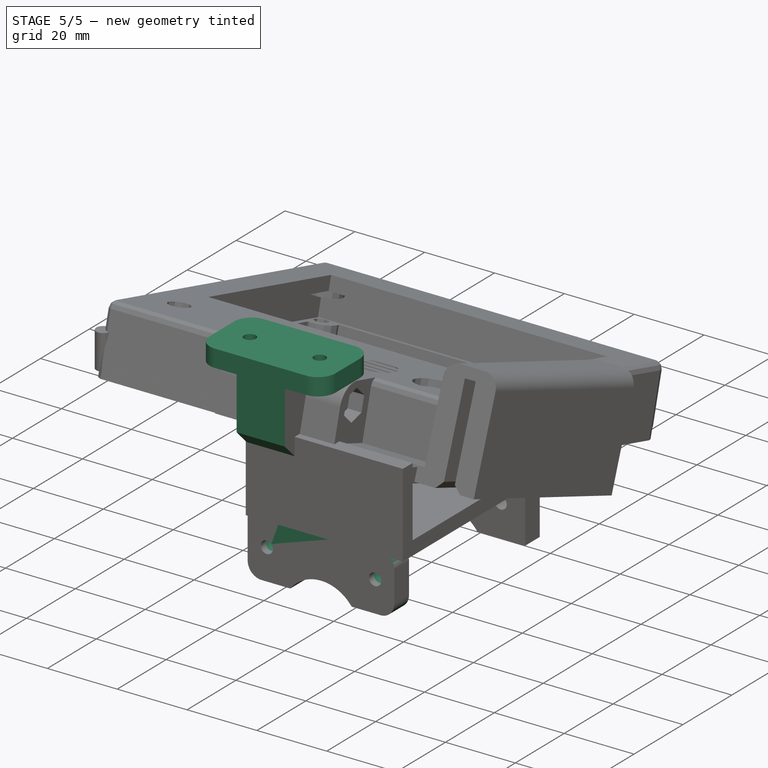
[diagram: stage 5 of 5 — iso view after this stage's code; geometry added in this stage tinted green]
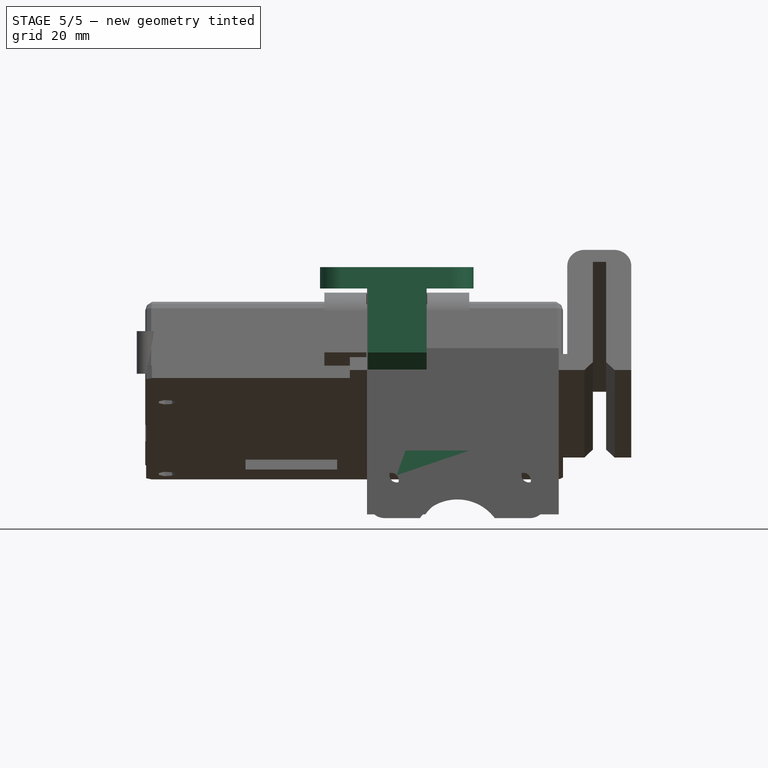
[diagram: stage 5 of 5 — front view after this stage's code; geometry added in this stage tinted green]
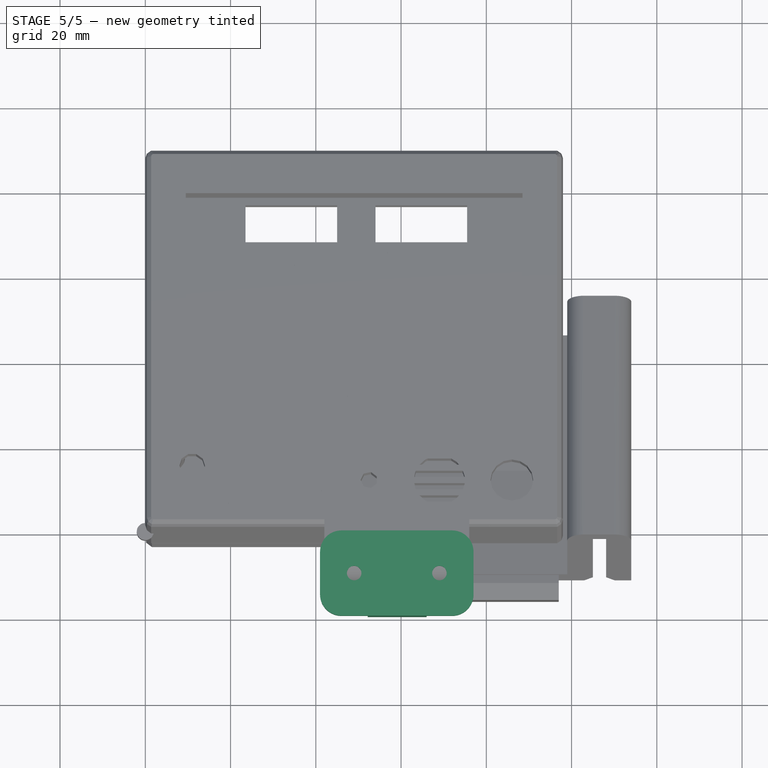
[diagram: stage 5 of 5 — top view after this stage's code; geometry added in this stage tinted green]
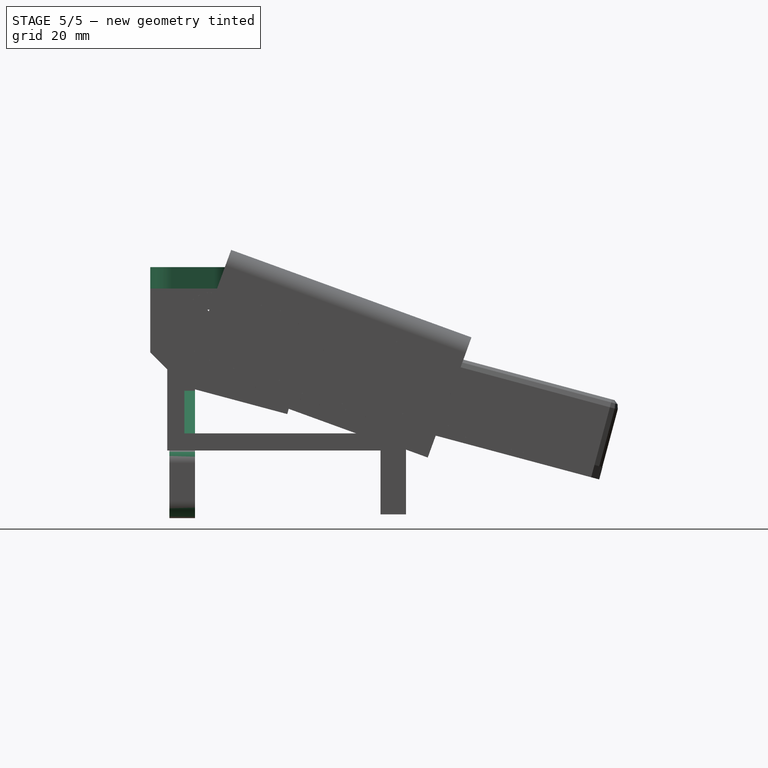
[diagram: stage 5 of 5 — right view after this stage's code; geometry added in this stage tinted green]
FEATURE [Part::Box] Box005  label="Cube004"
  Height = 5
  Length = 36
  Placement = pos=(41,-20,20) rot=(0,0,1;0rad)
  Width = 20
FEATURE [Sketcher::SketchObject] Sketch004
  ExternalGeometry = -> [Box005]
  Placement = pos=(41,-20,25) rot=(0,0,1;0rad)
  Support = -> Box005 [Face6]
  sketch-geometry (7):
    g0: LineSegment [constr] StartX=0 StartY=10 StartZ=0 EndX=8 EndY=10 EndZ=0
    g1: LineSegment [constr] StartX=8 StartY=10 StartZ=0 EndX=28 EndY=10 EndZ=0
    g2: LineSegment [constr] StartX=28 StartY=10 StartZ=0 EndX=36 EndY=10 EndZ=0
    g3: LineSegment [constr] StartX=28 StartY=10 StartZ=0 EndX=28 EndY=20 EndZ=0
    g4: LineSegment [constr] StartX=28 StartY=10 StartZ=0 EndX=28 EndY=0 EndZ=0
    g5: Circle CenterX=8 CenterY=10 CenterZ=0 NormalX=0 NormalY=0 NormalZ=1 Radius=1.7
    g6: Circle CenterX=28 CenterY=10 CenterZ=0 NormalX=0 NormalY=0 NormalZ=1 Radius=1.7
  constraints (16):
    c: Horizontal(g0)
    c: Coincident(g0,g1)
    c: Horizontal(g1)
    c: Coincident(g1,g2)
    c: Horizontal(g2)
    c: Coincident(g3,g1)
    c: Vertical(g3)
    c: Coincident(g4,g1)
    c: Vertical(g4)
    c: Equal(g0,g2)
    c: Equal(g3,g4)
    c: Distance(g1) = 20
    c: Coincident(g5,g0)
    c: Coincident(g6,g1)
    c: Radius(g6) = 1.7
    c: Equal(g6,g5)
FEATURE [Part::Box] Box005001
  Height = 10
  Length = 10
  Width = 10
FEATURE [Part::Box] Box006  label="Cube005"
  Height = 23
  Length = 14
  Placement = pos=(52,-20,-3) rot=(0,0,1;0rad)
  Width = 10.5
FEATURE [PartDesign::Pocket] Pocket004
  Length = 5
  Placement = pos=(41,-20,20) rot=(0,0,1;0rad)
  Sketch = -> Sketch004
  Type = 0
FEATURE [Sketcher::SketchObject] Sketch005
  Placement = pos=(41,-20,20) rot=(1,0,0;3.14159rad)
  Support = -> Pocket004 [Face5]
  sketch-geometry (14):
    g0: LineSegment StartX=25.1 StartY=-8.32568 StartZ=0 EndX=25.1 EndY=-11.6743 EndZ=0
    g1: LineSegment StartX=25.1 StartY=-11.6743 StartZ=0 EndX=28 EndY=-13.3486 EndZ=0
    g2: LineSegment StartX=28 StartY=-13.3486 StartZ=0 EndX=30.9 EndY=-11.6743 EndZ=0
    g3: LineSegment StartX=30.9 StartY=-11.6743 StartZ=0 EndX=30.9 EndY=-8.32568 EndZ=0
    g4: LineSegment StartX=30.9 StartY=-8.32568 StartZ=0 EndX=28 EndY=-6.65137 EndZ=0
    g5: LineSegment StartX=28 StartY=-6.65137 StartZ=0 EndX=25.1 EndY=-8.32568 EndZ=0
    g6: Circle [constr] CenterX=28 CenterY=-10 CenterZ=0 NormalX=0 NormalY=0 NormalZ=1 Radius=3.34863
    g7: LineSegment StartX=10.9 StartY=-11.6743 StartZ=0 EndX=10.9 EndY=-8.32568 EndZ=0
    g8: LineSegment StartX=10.9 StartY=-8.32568 StartZ=0 EndX=8 EndY=-6.65137 EndZ=0
    g9: LineSegment StartX=8 StartY=-6.65137 StartZ=0 EndX=5.1 EndY=-8.32568 EndZ=0
    g10: LineSegment StartX=5.1 StartY=-8.32568 StartZ=0 EndX=5.1 EndY=-11.6743 EndZ=0
    g11: LineSegment StartX=5.1 StartY=-11.6743 StartZ=0 EndX=8 EndY=-13.3486 EndZ=0
    g12: LineSegment StartX=8 StartY=-13.3486 StartZ=0 EndX=10.9 EndY=-11.6743 EndZ=0
    g13: Circle [constr] CenterX=8 CenterY=-10 CenterZ=0 NormalX=0 NormalY=0 NormalZ=1 Radius=3.34863
  constraints (30):
    c: Coincident(g0,g1)
    c: Coincident(g1,g2)
    c: Coincident(g2,g3)
    c: Coincident(g3,g4)
    c: Coincident(g4,g5)
    c: Coincident(g5,g0)
    c: Equal(g0, g1-g5) x5
    c: PointOnObject(g0,g6)
    c: PointOnObject(g1,g6)
    c: PointOnObject(g2,g6)
    c: PointOnObject(g3,g6)
    c: PointOnObject(g4,g6)
    c: PointOnObject(g5,g6)
    c: Coincident(g7,g8)
    c: Coincident(g8,g9)
    c: Coincident(g9,g10)
    c: Coincident(g10,g11)
    c: Coincident(g11,g12)
    c: Coincident(g12,g7)
    c: Equal(g7, g8-g12) x5
    c: PointOnObject(g7,g13)
    c: PointOnObject(g8,g13)
    c: PointOnObject(g9,g13)
    c: PointOnObject(g10,g13)
    c: PointOnObject(g11,g13)
    c: PointOnObject(g12,g13)
    c: Vertical(g0)
    c: Vertical(g7)
    c: Equal(g13,g6)
    c: Distance(g7,g9) = 5.8
FEATURE [PartDesign::Pocket] Pocket005
  Length = 3
  Placement = pos=(41,-20,20) rot=(0,0,1;0rad)
  Sketch = -> Sketch005
  Type = 0
FEATURE [Part::MultiFuse] Fusion001
  Shapes = -> [Pocket005,Box006]
FEATURE [App::DocumentObjectGroup] Group002  label="Enganche"
  Group = -> [Chamfer,Cut001,Box002,Pocket006]
FEATURE [Part::FeaturePython] Clone  label="Clone of Enganche001"  # Draft clone (typed FeaturePython)
  Objects = -> [Pocket006]
  Scale = (1,1,1)
FEATURE [Part::MultiFuse] Fusion004
  Shapes = -> [Clone,Fusion001]
FEATURE [PartDesign::Chamfer] Chamfer001
  Base = -> Fusion004 [Edge15]
  Size = 7.99
FEATURE [PartDesign::Fillet] Fillet002  label="Soporte-SingleFrame"
  Base = -> Chamfer001 [Edge36,Edge39,Edge69,Edge64]
  Radius = 5
FEATURE [Part::FeaturePython] Clone001  label="Clone of Enganche002"  # Draft clone (typed FeaturePython)
  Objects = -> [Pocket006]
  Scale = (1,1,1)
FEATURE [Sketcher::SketchObject] Sketch007
  ExternalGeometry = -> [Fillet002]
  Placement = pos=(0,-20,0) rot=(1,0,0;1.5708rad)
  Support = -> Fillet002 [Face1]
  sketch-geometry (4):
    g0: LineSegment StartX=52 StartY=20 StartZ=0 EndX=52.2 EndY=20 EndZ=0
    g1: LineSegment StartX=52.2 StartY=20 StartZ=0 EndX=52.2 EndY=-14.5512 EndZ=0
    g2: LineSegment StartX=52.2 StartY=-14.5512 StartZ=0 EndX=52 EndY=-14.5512 EndZ=0
    g3: LineSegment StartX=52 StartY=-14.5512 StartZ=0 EndX=52 EndY=20 EndZ=0
  constraints (10):
    c: Coincident(g0,g1)
    c: Coincident(g1,g2)
    c: Coincident(g2,g3)
    c: Coincident(g3,g0)
    c: Horizontal(g0)
    c: Horizontal(g2)
    c: Vertical(g1)
    c: Vertical(g3)
    c: Coincident(g0,g-3)
    c: Distance(g2) = 0.2
FEATURE [PartDesign::Pocket] Pocket007  label="Soporte"
  Length = 40
  Sketch = -> Sketch007
  Type = 0
FEATURE [Sketcher::SketchObject] Sketch008
  ExternalGeometry = -> [Clone001]
  Placement = pos=(0,-12,0) rot=(1,0,0;1.5708rad)
  Support = -> Clone001 [Face5]
  sketch-geometry (4):
    g0: LineSegment StartX=52 StartY=-7.42622 StartZ=0 EndX=52.2 EndY=-7.42622 EndZ=0
    g1: LineSegment StartX=52.2 StartY=-7.42622 StartZ=0 EndX=52.2 EndY=26.9183 EndZ=0
    g2: LineSegment StartX=52.2 StartY=26.9183 StartZ=0 EndX=52 EndY=26.9183 EndZ=0
    g3: LineSegment StartX=52 StartY=26.9183 StartZ=0 EndX=52 EndY=-7.42622 EndZ=0
  constraints (10):
    c: Coincident(g0,g1)
    c: Coincident(g1,g2)
    c: Coincident(g2,g3)
    c: Horizontal(g0)
    c: Horizontal(g2)
    c: Vertical(g1)
    c: Vertical(g3)
    c: Distance(g2) = 0.2
    c: Coincident(g3,g0)
    c: PointOnObject(g-3,g3)
FEATURE [PartDesign::Pocket] Pocket008
  Length = 80
  Sketch = -> Sketch008
  Type = 0
FEATURE [Part::MultiFuse] Fusion005
  Shapes = -> [Box005002,Clone001,Pocket010]
FEATURE [PartDesign::Chamfer] Chamfer002
  Base = -> Fusion005 [Edge16]
  Size = 13
FEATURE [PartDesign::Fillet] Fillet003
  Base = -> Chamfer002 [Edge3,Edge18,Edge45]
  Radius = 4
FEATURE [PartDesign::Fillet] Fillet004
  Base = -> Fillet003 [Edge59]
  Radius = 2
FEATURE [Sketcher::SketchObject] Sketch011
  ExternalGeometry = -> [Fillet004]
  Placement = pos=(0,-9.5,0) rot=(0,0.707107,0.707107;3.14159rad)
  Support = -> Fillet004 [Face8]
  sketch-geometry (2):
    g0: Circle CenterX=-88.7 CenterY=-25 CenterZ=0 NormalX=0 NormalY=0 NormalZ=1 Radius=2.95
    g1: Circle CenterX=-57.7 CenterY=-25 CenterZ=0 NormalX=0 NormalY=0 NormalZ=1 Radius=2.95
  constraints (4):
    c: Coincident(g0,g-4)
    c: Coincident(g1,g-3)
    c: Equal(g1,g0)
    c: Radius(g0) = 2.95
FEATURE [PartDesign::Pocket] Pocket011
  Length = 4
  Sketch = -> Sketch011
  Type = 0
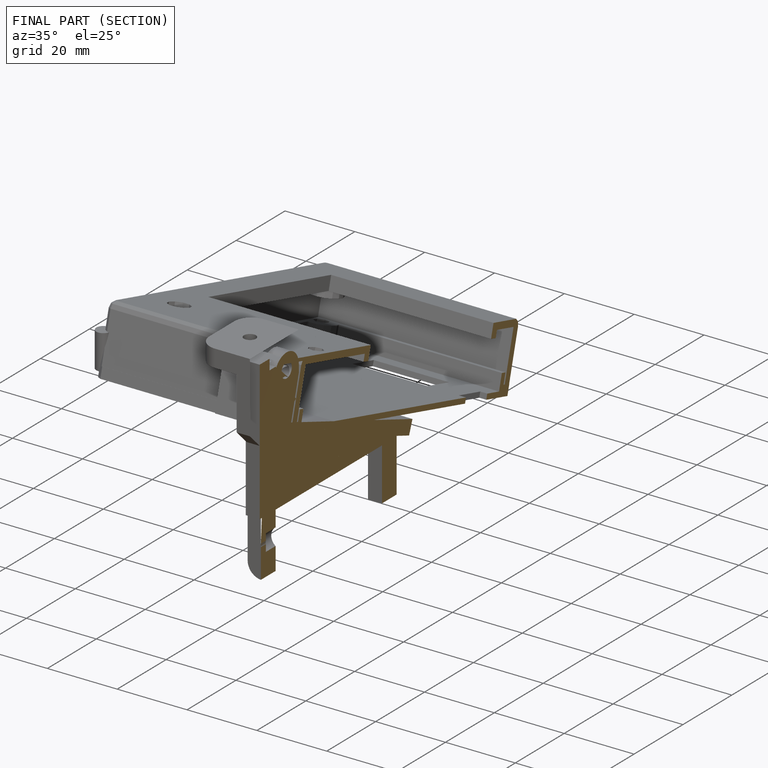
[diagram: finished part — half-section view (interior)]
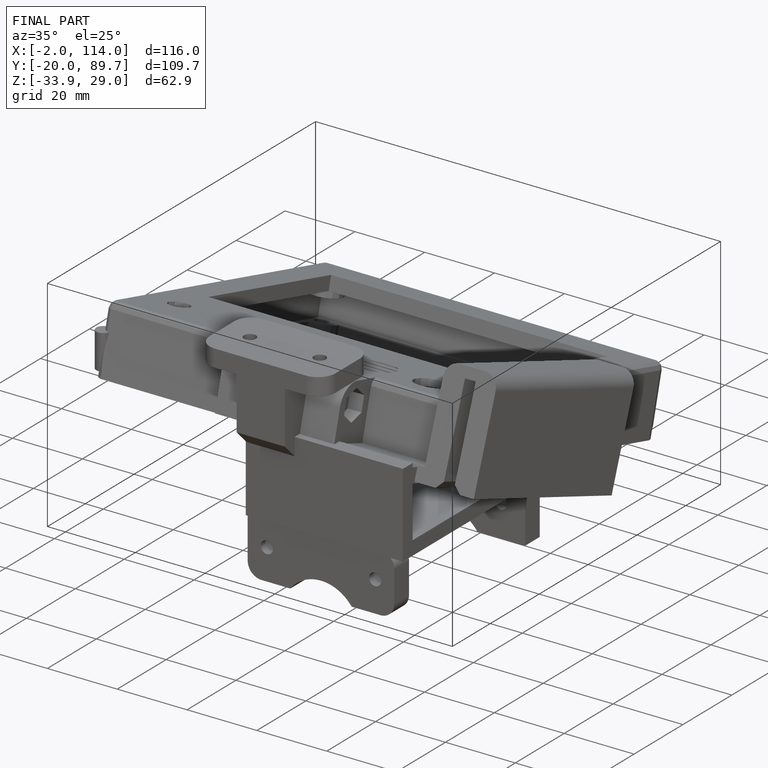
[diagram: finished part — iso view with bounding-box wireframe]
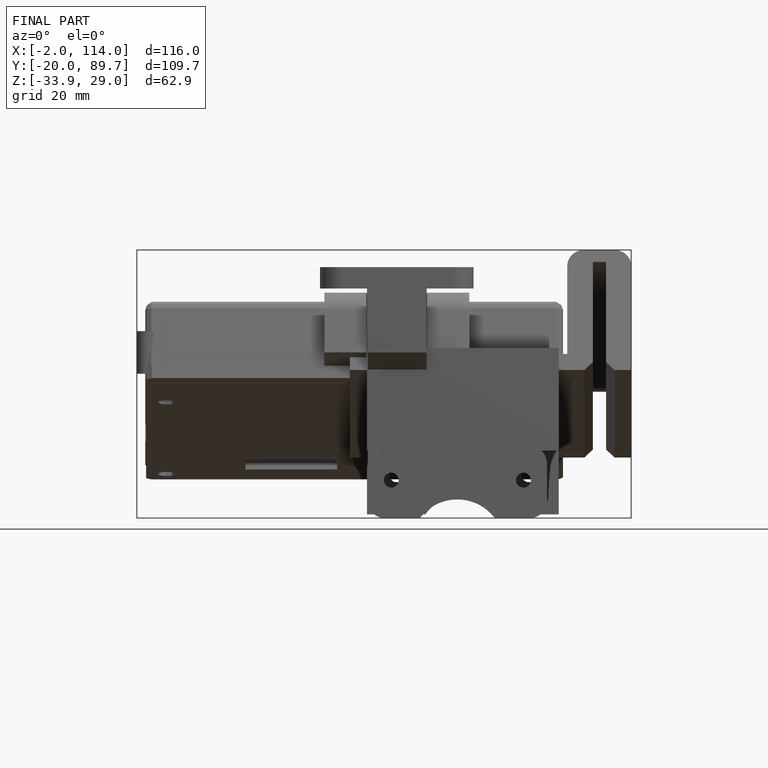
[diagram: finished part — front view with bounding-box wireframe]
